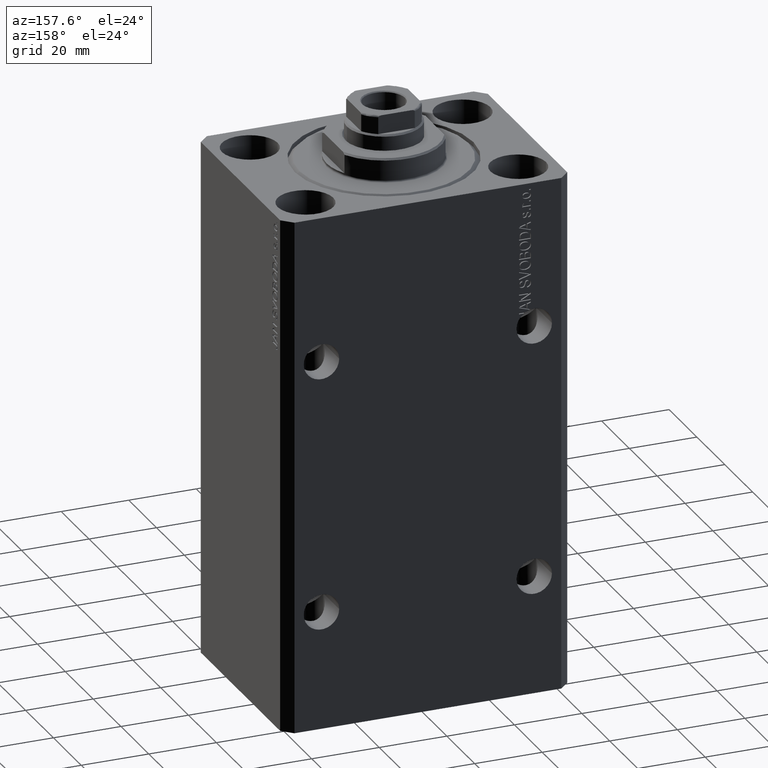
[diagram: clean part render]
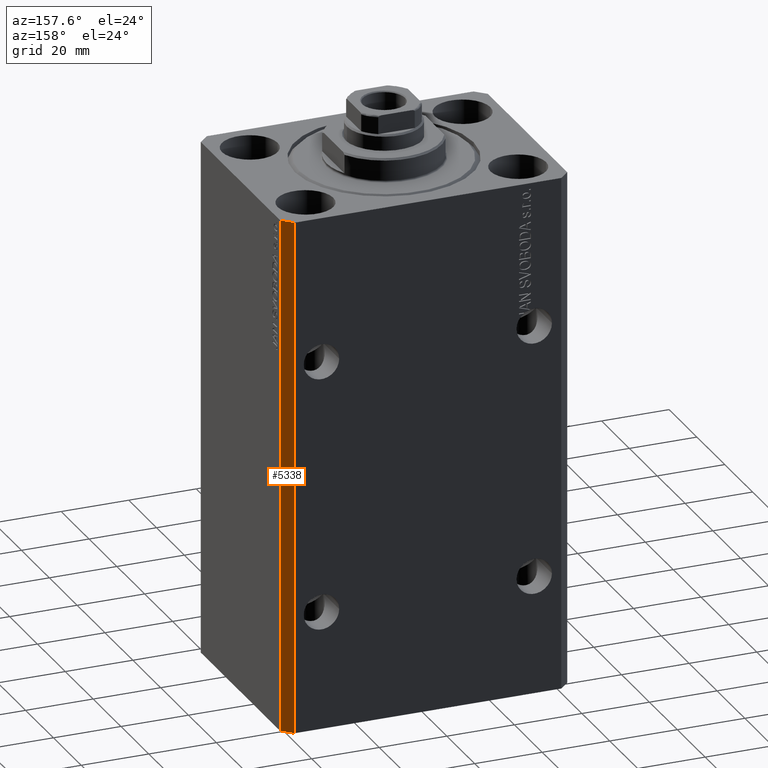
[diagram: same view with one face highlighted and labeled with its STEP entity id]
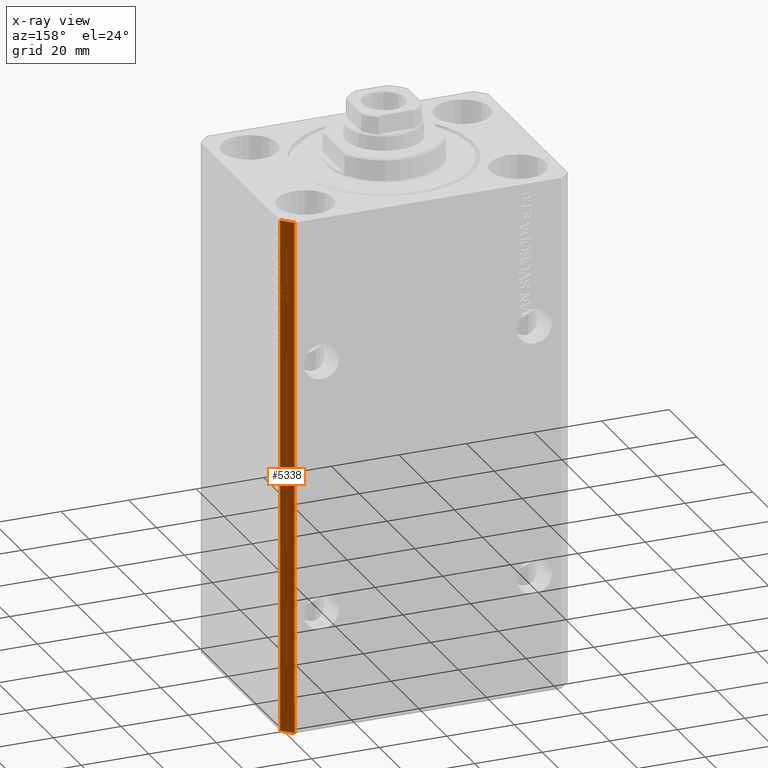
[diagram: x-ray of the same camera — body ghosted, the highlighted face saturated]
A machine part, auxiliary view. The second image highlights one B-rep face of the part: STEP entity #5338.
The next image is the same camera in x-ray: the body ghosted, the highlighted face saturated — about 0% of this face is hidden behind the body in this view.
In plain terms, the highlighted planar face has unit normal (0.7071, 0.7071, 0).
Its self-contained STEP definition (entity closure, byte-faithful):
#279 = DIRECTION ( 'NONE',  ( 0.7071067811865594521, 0.7071067811865356934, -0.000000000000000000 ) ) ;
#504 = FACE_OUTER_BOUND ( 'NONE', #7423, .T. ) ;
#1487 = VECTOR ( 'NONE', #39999, 1000.000000000000000 ) ;
#1995 = EDGE_CURVE ( 'NONE', #27348, #20607, #42999, .T. ) ;
#2819 = EDGE_CURVE ( 'NONE', #28874, #4192, #22584, .T. ) ;
#2992 = VECTOR ( 'NONE', #30942, 1000.000000000000114 ) ;
#3505 = CARTESIAN_POINT ( 'NONE',  ( 42.50000000000051870, 28.49999999999995381, -153.0000000000000000 ) ) ;
#3850 = CARTESIAN_POINT ( 'NONE',  ( 39.50000000000056843, 31.50000000000000000, -153.0000000000000000 ) ) ;
#4192 = VERTEX_POINT ( 'NONE', #29213 ) ;
#5338 = ADVANCED_FACE ( 'NONE', ( #504 ), #17696, .T. ) ;
#7423 = EDGE_LOOP ( 'NONE', ( #41200, #22232, #40212, #35817 ) ) ;
#7916 = CARTESIAN_POINT ( 'NONE',  ( 42.50000000000051870, 28.49999999999995381, -153.0000000000000000 ) ) ;
#9119 = CARTESIAN_POINT ( 'NONE',  ( 42.50000000000051870, 28.49999999999995381, 0.000000000000000000 ) ) ;
#14337 = EDGE_CURVE ( 'NONE', #27348, #28874, #22134, .T. ) ;
#14479 = DIRECTION ( 'NONE',  ( -0.7071067811865356934, 0.7071067811865594521, 0.000000000000000000 ) ) ;
#15746 = AXIS2_PLACEMENT_3D ( 'NONE', #27598, #279, #14479 ) ;
#16539 = CARTESIAN_POINT ( 'NONE',  ( 42.50000000000051870, 28.49999999999995381, -153.0000000000000000 ) ) ;
#17696 = PLANE ( 'NONE',  #15746 ) ;
#20607 = VERTEX_POINT ( 'NONE', #9119 ) ;
#21908 = DIRECTION ( 'NONE',  ( -0.7071067811865356934, 0.7071067811865594521, 0.000000000000000000 ) ) ;
#22134 = LINE ( 'NONE', #7916, #41509 ) ;
#22232 = ORIENTED_EDGE ( 'NONE', *, *, #1995, .F. ) ;
#22344 = DIRECTION ( 'NONE',  ( 0.000000000000000000, 0.000000000000000000, 1.000000000000000000 ) ) ;
#22584 = LINE ( 'NONE', #33129, #1487 ) ;
#22720 = VECTOR ( 'NONE', #22344, 1000.000000000000000 ) ;
#23818 = EDGE_CURVE ( 'NONE', #20607, #4192, #34376, .T. ) ;
#27348 = VERTEX_POINT ( 'NONE', #3505 ) ;
#27598 = CARTESIAN_POINT ( 'NONE',  ( 42.50000000000051870, 28.49999999999995381, -153.0000000000000000 ) ) ;
#28874 = VERTEX_POINT ( 'NONE', #3850 ) ;
#29213 = CARTESIAN_POINT ( 'NONE',  ( 39.50000000000056843, 31.50000000000000000, 0.000000000000000000 ) ) ;
#30942 = DIRECTION ( 'NONE',  ( -0.7071067811865356934, 0.7071067811865594521, 0.000000000000000000 ) ) ;
#33129 = CARTESIAN_POINT ( 'NONE',  ( 39.50000000000056843, 31.50000000000000000, -153.0000000000000000 ) ) ;
#34376 = LINE ( 'NONE', #45394, #2992 ) ;
#35817 = ORIENTED_EDGE ( 'NONE', *, *, #2819, .T. ) ;
#39999 = DIRECTION ( 'NONE',  ( 0.000000000000000000, 0.000000000000000000, 1.000000000000000000 ) ) ;
#40212 = ORIENTED_EDGE ( 'NONE', *, *, #14337, .T. ) ;
#41200 = ORIENTED_EDGE ( 'NONE', *, *, #23818, .F. ) ;
#41509 = VECTOR ( 'NONE', #21908, 1000.000000000000114 ) ;
#42999 = LINE ( 'NONE', #16539, #22720 ) ;
#45394 = CARTESIAN_POINT ( 'NONE',  ( 42.50000000000051870, 28.49999999999995381, 0.000000000000000000 ) ) ;